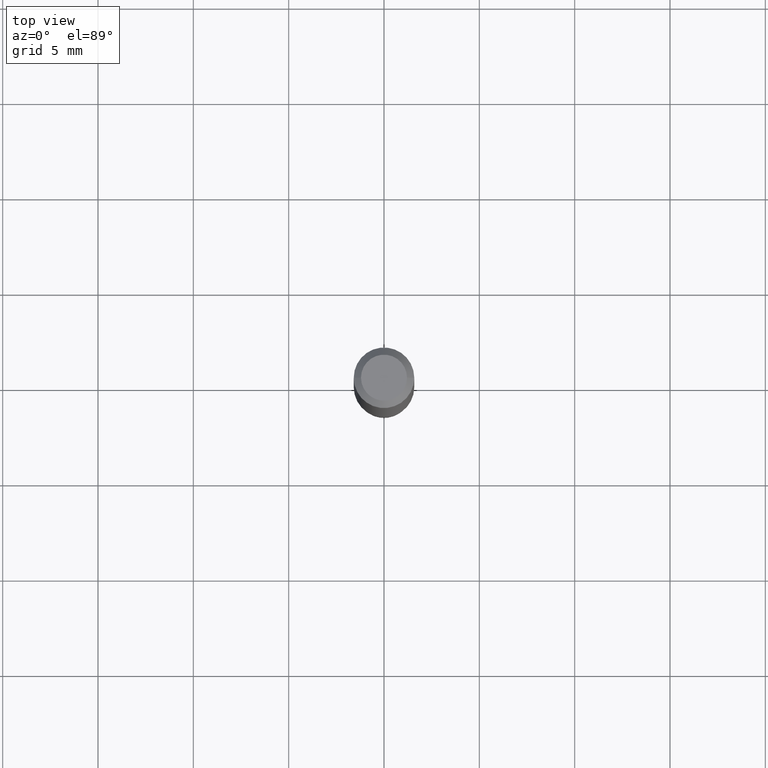
[diagram: clean part render]
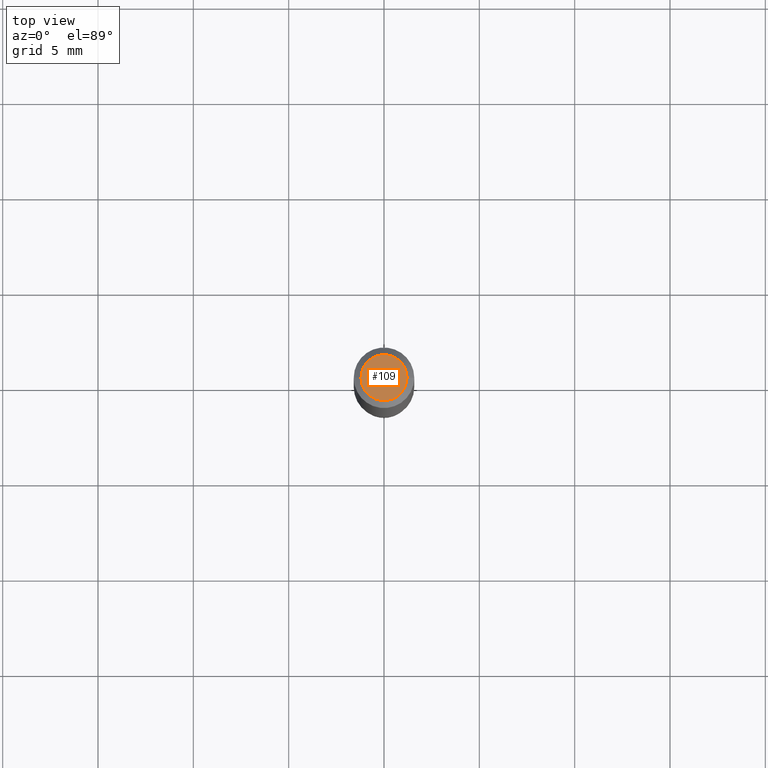
[diagram: same view with one face highlighted and labeled with its STEP entity id]
A machine part, top view. The second image highlights one B-rep face of the part: STEP entity #109.
In plain terms, the highlighted planar face has unit normal (0, -0, -1).
Its self-contained STEP definition (entity closure, byte-faithful):
#36 = CIRCLE ( 'NONE', #104, 0.04750000000000000749 ) ;
#49 = DIRECTION ( 'NONE',  ( 2.438088387897960049E-29, -3.491481338843145188E-15, -1.000000000000000000 ) ) ;
#91 = FACE_OUTER_BOUND ( 'NONE', #299, .T. ) ;
#93 = PLANE ( 'NONE',  #353 ) ;
#100 = DIRECTION ( 'NONE',  ( 1.000000000000000000, -6.982962677686266711E-15, 4.852736867747365086E-29 ) ) ;
#104 = AXIS2_PLACEMENT_3D ( 'NONE', #141, #347, #100 ) ;
#105 = VERTEX_POINT ( 'NONE', #406 ) ;
#109 = ADVANCED_FACE ( 'NONE', ( #91 ), #93, .F. ) ;
#111 = ORIENTED_EDGE ( 'NONE', *, *, #429, .T. ) ;
#141 = CARTESIAN_POINT ( 'NONE',  ( -6.680649051745406845E-45, 9.538196290434862081E-31, 2.731847993664263218E-16 ) ) ;
#195 = DIRECTION ( 'NONE',  ( -2.445468806185136597E-29, 3.491481338843145583E-15, 1.000000000000000000 ) ) ;
#247 = CARTESIAN_POINT ( 'NONE',  ( 3.316907271900976589E-16, 0.04750000000000000749, -2.925296391183627249E-17 ) ) ;
#299 = EDGE_LOOP ( 'NONE', ( #111, #518 ) ) ;
#347 = DIRECTION ( 'NONE',  ( -2.445468806185136597E-29, 3.491481338843145583E-15, 1.000000000000000000 ) ) ;
#353 = AXIS2_PLACEMENT_3D ( 'NONE', #247, #49, #371 ) ;
#357 = DIRECTION ( 'NONE',  ( 1.000000000000000000, -6.982962677686266711E-15, 4.852736867747365086E-29 ) ) ;
#371 = DIRECTION ( 'NONE',  ( -1.000000000000000000, 6.982962677686265922E-15, -4.876176775795935793E-29 ) ) ;
#379 = EDGE_CURVE ( 'NONE', #468, #105, #36, .T. ) ;
#394 = AXIS2_PLACEMENT_3D ( 'NONE', #438, #195, #357 ) ;
#406 = CARTESIAN_POINT ( 'NONE',  ( -0.04750000000000000749, 3.578768372314221353E-16, 2.731847993664239060E-16 ) ) ;
#429 = EDGE_CURVE ( 'NONE', #105, #468, #444, .T. ) ;
#438 = CARTESIAN_POINT ( 'NONE',  ( -6.680649051745406845E-45, 9.538196290434862081E-31, 2.731847993664263218E-16 ) ) ;
#444 = CIRCLE ( 'NONE', #394, 0.04750000000000000749 ) ;
#468 = VERTEX_POINT ( 'NONE', #473 ) ;
#473 = CARTESIAN_POINT ( 'NONE',  ( 0.04750000000000000749, -4.035134999187568762E-16, 2.731847993664288856E-16 ) ) ;
#518 = ORIENTED_EDGE ( 'NONE', *, *, #379, .T. ) ;